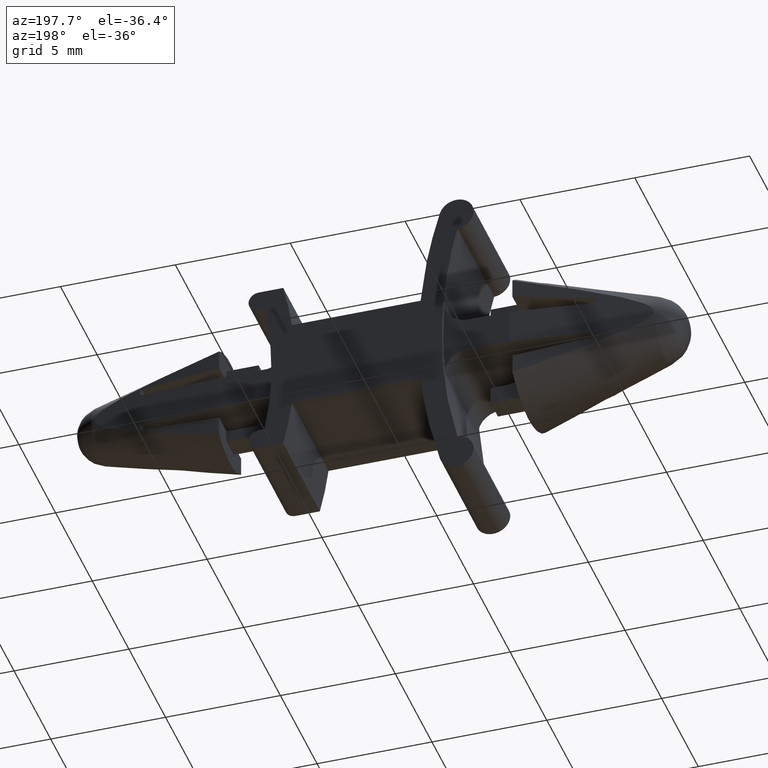
[diagram: clean part render]
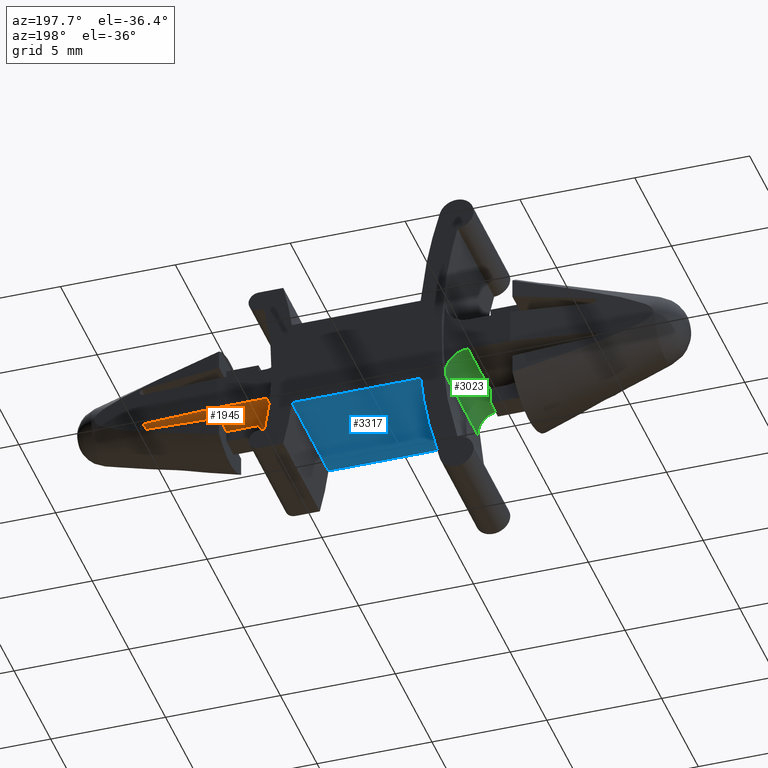
[diagram: same view with three faces highlighted in distinct colors, each labeled with its STEP entity id]
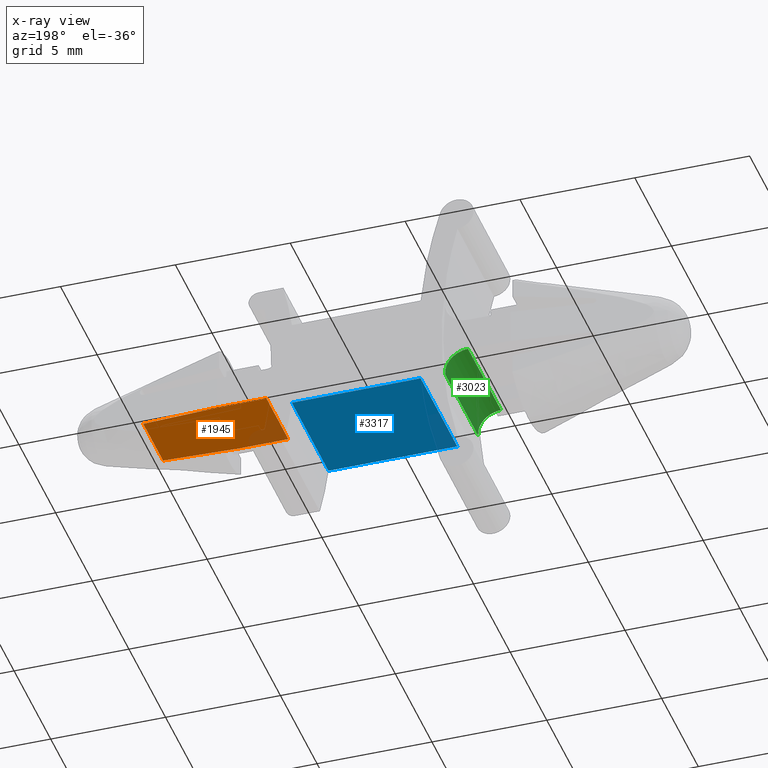
[diagram: x-ray of the same camera — body ghosted, the three highlighted faces saturated]
A machine part, auxiliary view with three faces highlighted in distinct colors.
The next image is the same camera in x-ray (body ghosted, the three faces saturated) — at least one of them is partly hidden behind the body in this view.
Their STEP definitions:

[orange] entity #1945 — the highlighted face is a freeform B-spline surface patch.
#709=CARTESIAN_POINT('',(12.349972999999940,1.348568543594552,-0.750000000000000));
#710=VERTEX_POINT('',#709);
#726=CARTESIAN_POINT('',(9.091937999999820,1.500000000000100,-0.750000000000028));
#727=VERTEX_POINT('',#726);
#728=CARTESIAN_POINT('',(12.349972999999940,1.348568543594552,-0.750000000000000));
#729=CARTESIAN_POINT('',(9.091937999999820,1.500000000000100,-0.750000000000028));
#730=QUASI_UNIFORM_CURVE('',1,(#728,#729),.UNSPECIFIED.,.F.,.U.);
#731=EDGE_CURVE('',#710,#727,#730,.T.);
#966=CARTESIAN_POINT('',(9.091937999999820,-1.499999999999900,-0.750000000000028));
#967=VERTEX_POINT('',#966);
#973=CARTESIAN_POINT('',(12.349972999999940,-1.348568543594330,-0.750000000000000));
#974=VERTEX_POINT('',#973);
#975=CARTESIAN_POINT('',(9.091937999999820,-1.499999999999900,-0.750000000000028));
#976=CARTESIAN_POINT('',(12.349972999999940,-1.348568543594330,-0.750000000000000));
#977=QUASI_UNIFORM_CURVE('',1,(#975,#976),.UNSPECIFIED.,.F.,.U.);
#978=EDGE_CURVE('',#967,#974,#977,.T.);
#1670=CARTESIAN_POINT('',(6.943061999999999,-1.499999999999946,-0.750000000000000));
#1671=VERTEX_POINT('',#1670);
#1688=CARTESIAN_POINT('',(6.943061999999999,1.500000000000055,-0.750000000000000));
#1689=VERTEX_POINT('',#1688);
#1705=CARTESIAN_POINT('',(6.943061999999999,1.500000000000055,-0.750000000000000));
#1706=CARTESIAN_POINT('',(6.943061999999999,-1.499999999999946,-0.750000000000000));
#1707=QUASI_UNIFORM_CURVE('',1,(#1705,#1706),.UNSPECIFIED.,.F.,.U.);
#1708=EDGE_CURVE('',#1689,#1671,#1707,.T.);
#1775=CARTESIAN_POINT('',(9.091937999999820,-1.499999999999900,-0.750000000000028));
#1776=CARTESIAN_POINT('',(6.943061999999999,-1.499999999999946,-0.750000000000000));
#1777=QUASI_UNIFORM_CURVE('',1,(#1775,#1776),.UNSPECIFIED.,.F.,.U.);
#1778=EDGE_CURVE('',#967,#1671,#1777,.T.);
#1797=CARTESIAN_POINT('',(9.091937999999820,1.500000000000100,-0.750000000000028));
#1798=CARTESIAN_POINT('',(6.943061999999999,1.500000000000055,-0.750000000000000));
#1799=QUASI_UNIFORM_CURVE('',1,(#1797,#1798),.UNSPECIFIED.,.F.,.U.);
#1800=EDGE_CURVE('',#727,#1689,#1799,.T.);
#1872=CARTESIAN_POINT('',(12.349972999999940,1.348568543594552,-0.750000000000000));
#1873=CARTESIAN_POINT('',(12.349972999999940,-1.348568543594330,-0.750000000000000));
#1874=QUASI_UNIFORM_CURVE('',1,(#1872,#1873),.UNSPECIFIED.,.F.,.U.);
#1875=EDGE_CURVE('',#710,#974,#1874,.T.);
#1932=CARTESIAN_POINT('',(6.672986622322081,-1.649849994185366,-0.750000000000000));
#1933=CARTESIAN_POINT('',(12.620047942603900,-1.649849994185366,-0.750000000000000));
#1934=CARTESIAN_POINT('',(6.672986622322081,1.649850074651791,-0.750000000000000));
#1935=CARTESIAN_POINT('',(12.620047942603900,1.649850074651791,-0.750000000000000));
#1936=B_SPLINE_SURFACE_WITH_KNOTS('',1,1,((#1932,#1934),(#1933,#1935)),.UNSPECIFIED.,.F.,.F.,.U.,(2,2),(2,2),(0.0,5.947061320281816),(0.0,3.299700068837157),.UNSPECIFIED.);
#1937=ORIENTED_EDGE('',*,*,#731,.F.);
#1938=ORIENTED_EDGE('',*,*,#1875,.T.);
#1939=ORIENTED_EDGE('',*,*,#978,.F.);
#1940=ORIENTED_EDGE('',*,*,#1778,.T.);
#1941=ORIENTED_EDGE('',*,*,#1708,.F.);
#1942=ORIENTED_EDGE('',*,*,#1800,.F.);
#1943=EDGE_LOOP('',(#1937,#1938,#1939,#1940,#1941,#1942));
#1944=FACE_OUTER_BOUND('',#1943,.T.);
#1945=ADVANCED_FACE('',(#1944),#1936,.F.);

[blue] entity #3317 — the highlighted face is a freeform B-spline surface patch.
#2006=CARTESIAN_POINT('',(5.513546577129890,2.499999999999945,-2.0));
#2007=VERTEX_POINT('',#2006);
#2008=CARTESIAN_POINT('',(5.513546577129880,-2.500000000000000,-2.0));
#2009=VERTEX_POINT('',#2008);
#2010=CARTESIAN_POINT('',(5.513546577129890,2.499999999999945,-2.0));
#2011=CARTESIAN_POINT('',(5.513546577129880,-2.500000000000000,-2.0));
#2012=QUASI_UNIFORM_CURVE('',1,(#2010,#2011),.UNSPECIFIED.,.F.,.U.);
#2013=EDGE_CURVE('',#2007,#2009,#2012,.T.);
#3178=CARTESIAN_POINT('',(-0.091632126966619,-2.499999999999945,-2.0));
#3179=VERTEX_POINT('',#3178);
#3180=CARTESIAN_POINT('',(-0.091632126966619,2.500000000000060,-2.0));
#3181=VERTEX_POINT('',#3180);
#3182=CARTESIAN_POINT('',(-0.091632126966619,-2.499999999999945,-2.0));
#3183=CARTESIAN_POINT('',(-0.091632126966619,2.500000000000060,-2.0));
#3184=QUASI_UNIFORM_CURVE('',1,(#3182,#3183),.UNSPECIFIED.,.F.,.U.);
#3185=EDGE_CURVE('',#3179,#3181,#3184,.T.);
#3289=CARTESIAN_POINT('',(5.513546577129890,2.499999999999945,-2.0));
#3290=CARTESIAN_POINT('',(-0.091632126966619,2.500000000000060,-2.0));
#3291=QUASI_UNIFORM_CURVE('',1,(#3289,#3290),.UNSPECIFIED.,.F.,.U.);
#3292=EDGE_CURVE('',#2007,#3181,#3291,.T.);
#3302=CARTESIAN_POINT('',(-0.371610772346681,2.749749990309093,-2.0));
#3303=CARTESIAN_POINT('',(-0.371610772346681,-2.749750124419483,-2.0));
#3304=CARTESIAN_POINT('',(5.793524971938938,2.749749990309093,-2.0));
#3305=CARTESIAN_POINT('',(5.793524971938938,-2.749750124419483,-2.0));
#3306=B_SPLINE_SURFACE_WITH_KNOTS('',1,1,((#3302,#3304),(#3303,#3305)),.UNSPECIFIED.,.F.,.F.,.U.,(2,2),(2,2),(0.0,5.499500114728576),(0.0,6.165135744285619),.UNSPECIFIED.);
#3307=ORIENTED_EDGE('',*,*,#3292,.F.);
#3308=ORIENTED_EDGE('',*,*,#2013,.T.);
#3309=CARTESIAN_POINT('',(5.513546577129880,-2.500000000000000,-2.0));
#3310=CARTESIAN_POINT('',(-0.091632126966619,-2.499999999999945,-2.0));
#3311=QUASI_UNIFORM_CURVE('',1,(#3309,#3310),.UNSPECIFIED.,.F.,.U.);
#3312=EDGE_CURVE('',#2009,#3179,#3311,.T.);
#3313=ORIENTED_EDGE('',*,*,#3312,.T.);
#3314=ORIENTED_EDGE('',*,*,#3185,.T.);
#3315=EDGE_LOOP('',(#3307,#3308,#3313,#3314));
#3316=FACE_OUTER_BOUND('',#3315,.T.);
#3317=ADVANCED_FACE('',(#3316),#3306,.F.);

[green] entity #3023 — the highlighted face is a freeform B-spline surface patch.
#2799=CARTESIAN_POINT('',(-1.081089059666180,-2.249999999999975,-1.838062623421165));
#2800=VERTEX_POINT('',#2799);
#2816=CARTESIAN_POINT('',(-1.081089059666180,2.250000000000085,-1.838062623421165));
#2817=VERTEX_POINT('',#2816);
#2818=CARTESIAN_POINT('',(-1.081089059666180,2.250000000000085,-1.838062623421165));
#2819=CARTESIAN_POINT('',(-1.081089059666180,-2.249999999999975,-1.838062623421165));
#2820=QUASI_UNIFORM_CURVE('',1,(#2818,#2819),.UNSPECIFIED.,.F.,.U.);
#2821=EDGE_CURVE('',#2817,#2800,#2820,.T.);
#2923=CARTESIAN_POINT('',(-2.077203999999965,2.250000000000085,-0.750000000000000));
#2924=VERTEX_POINT('',#2923);
#2930=CARTESIAN_POINT('',(-2.077203999999965,-2.249999999999975,-0.750000000000000));
#2931=VERTEX_POINT('',#2930);
#2932=CARTESIAN_POINT('',(-2.077203999999965,2.250000000000085,-0.750000000000000));
#2933=CARTESIAN_POINT('',(-2.077203999999965,-2.249999999999975,-0.750000000000000));
#2934=QUASI_UNIFORM_CURVE('',1,(#2932,#2933),.UNSPECIFIED.,.F.,.U.);
#2935=EDGE_CURVE('',#2924,#2931,#2934,.T.);
#2975=CARTESIAN_POINT('',(-2.119913854705227,2.362500000000087,-0.750912482156315));
#2976=CARTESIAN_POINT('',(-2.119913854705227,-2.365312499999977,-0.750912482156315));
#2977=CARTESIAN_POINT('',(-0.893020533830913,2.362500000000087,-0.698464188550873));
#2978=CARTESIAN_POINT('',(-0.893020533830913,-2.365312499999976,-0.698464188550873));
#2979=CARTESIAN_POINT('',(-1.090176006231452,2.362500000000086,-1.910548246696448));
#2980=CARTESIAN_POINT('',(-1.090176006231452,-2.365312499999977,-1.910548246696448));
#2988=(BOUNDED_SURFACE()B_SPLINE_SURFACE(1,2,((#2975,#2977,#2979),(#2976,#2978,#2980)),.UNSPECIFIED.,.F.,.F.,.U.)B_SPLINE_SURFACE_WITH_KNOTS((2,2),(3,3),(0.0,4.727812500000065),(0.0,0.996484916532785),.UNSPECIFIED.)GEOMETRIC_REPRESENTATION_ITEM()RATIONAL_B_SPLINE_SURFACE(((1.0,0.630623360814892,0.997403220564850),(1.0,0.630623360814892,0.997403220564850)))REPRESENTATION_ITEM('')SURFACE());
#2989=CARTESIAN_POINT('',(-1.081089059666179,-2.249999999999975,-1.838062623421165));
#2990=CARTESIAN_POINT('',(-1.042316652506838,-2.249999999999976,-1.399490928146845));
#2991=CARTESIAN_POINT('',(-1.339619217272865,-2.249999999999975,-1.074745464073423));
#2992=CARTESIAN_POINT('',(-1.636921782038894,-2.249999999999976,-0.750000000000000));
#2993=CARTESIAN_POINT('',(-2.077203999999965,-2.249999999999975,-0.750000000000000));
#3001=(BOUNDED_CURVE()B_SPLINE_CURVE(2,(#2989,#2990,#2991,#2992,#2993),.UNSPECIFIED.,.F.,.U.)B_SPLINE_CURVE_WITH_KNOTS((3,2,3),(0.0,0.500000000000000,1.0),.UNSPECIFIED.)CURVE()GEOMETRIC_REPRESENTATION_ITEM()RATIONAL_B_SPLINE_CURVE((1.0,0.915219792161035,1.0,0.915219792161035,1.0))REPRESENTATION_ITEM(''));
#3002=EDGE_CURVE('',#2800,#2931,#3001,.T.);
#3003=ORIENTED_EDGE('',*,*,#3002,.T.);
#3004=ORIENTED_EDGE('',*,*,#2935,.F.);
#3005=CARTESIAN_POINT('',(-1.081089059666179,2.250000000000085,-1.838062623421165));
#3006=CARTESIAN_POINT('',(-1.042316652506838,2.250000000000086,-1.399490928146845));
#3007=CARTESIAN_POINT('',(-1.339619217272865,2.250000000000085,-1.074745464073423));
#3008=CARTESIAN_POINT('',(-1.636921782038894,2.250000000000086,-0.750000000000000));
#3009=CARTESIAN_POINT('',(-2.077203999999965,2.250000000000085,-0.750000000000000));
#3017=(BOUNDED_CURVE()B_SPLINE_CURVE(2,(#3005,#3006,#3007,#3008,#3009),.UNSPECIFIED.,.F.,.U.)B_SPLINE_CURVE_WITH_KNOTS((3,2,3),(0.0,0.500000000000000,1.0),.UNSPECIFIED.)CURVE()GEOMETRIC_REPRESENTATION_ITEM()RATIONAL_B_SPLINE_CURVE((1.0,0.915219792161035,1.0,0.915219792161035,1.0))REPRESENTATION_ITEM(''));
#3018=EDGE_CURVE('',#2817,#2924,#3017,.T.);
#3019=ORIENTED_EDGE('',*,*,#3018,.F.);
#3020=ORIENTED_EDGE('',*,*,#2821,.T.);
#3021=EDGE_LOOP('',(#3003,#3004,#3019,#3020));
#3022=FACE_OUTER_BOUND('',#3021,.T.);
#3023=ADVANCED_FACE('',(#3022),#2988,.F.);